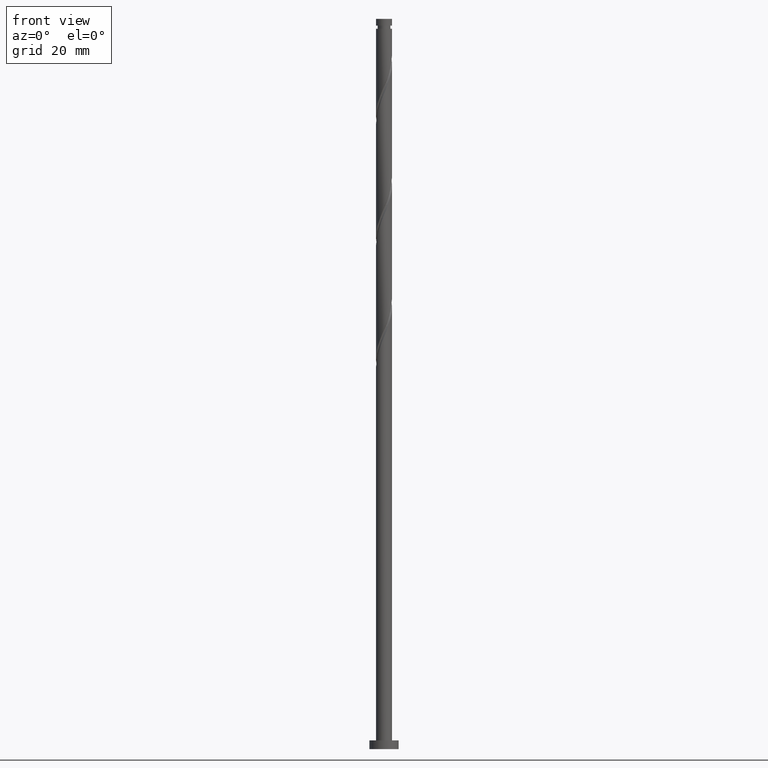
[diagram: clean part render]
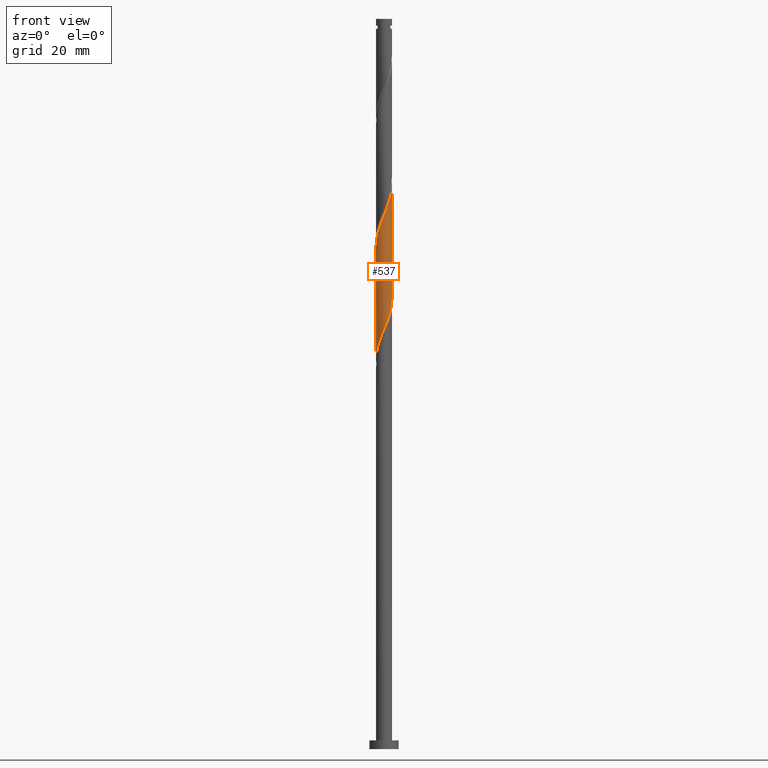
[diagram: same view with one face highlighted and labeled with its STEP entity id]
A machine part, front view. The second image highlights one B-rep face of the part: STEP entity #537.
In plain terms, the highlighted cylindrical surface (edge-blend (fillet) strip) has radius 2.75 mm, axis along (-0, -0, -1).
Its self-contained STEP definition (entity closure, byte-faithful):
#13 = CARTESIAN_POINT ( 'NONE',  ( -1.088498638932926976, -2.547384325978117925, 180.0894877273009627 ) ) ;
#31 = CARTESIAN_POINT ( 'NONE',  ( 2.749999999999999556, 2.811716444257881185E-15, 154.1738198596030429 ) ) ;
#47 = CARTESIAN_POINT ( 'NONE',  ( 2.750000000000000000, 3.367778697655221012E-16, 250.0000000000000000 ) ) ;
#116 =( BOUNDED_CURVE ( )  B_SPLINE_CURVE ( 2, ( #470, #1602, #1745, #1587, #873, #1430, #1565, #601, #1157, #187, #1706, #13, #594, #297, #1165, #853, #1309, #174, #746, #1149, #317, #146, #450, #1409, #734, #883, #326, #713, #864 ),
 .UNSPECIFIED., .F., .T. ) 
 B_SPLINE_CURVE_WITH_KNOTS ( ( 3, 2, 2, 2, 2, 2, 2, 2, 2, 2, 2, 2, 2, 2, 3 ),
 ( 0.3045271625973833829, 0.3076923076923077094, 0.3173076923076922906, 0.3269230769230768718, 0.3365384615384615641, 0.3461538461538461453, 0.3557692307692307265, 0.3653846153846154188, 0.3750000000000000000, 0.3846153846153845812, 0.3942307692307692735, 0.4038461538461538547, 0.4134615384615384359, 0.4230769230769231282, 0.4295271625973832719 ),
 .UNSPECIFIED. ) 
 CURVE ( )  GEOMETRIC_REPRESENTATION_ITEM ( )  RATIONAL_B_SPLINE_CURVE ( ( 0.9061636035682955059, 0.9069090390690841552, 0.9090909090909405910, 0.9024626128164440209, 0.9090909090909405910, 0.9024626128164440209, 0.9090909090909405910, 0.9024626128164440209, 0.9090909090909405910, 0.9024626128164440209, 0.9090909090909405910, 0.9024626128164440209, 0.9090909090909405910, 0.9024626128164440209, 0.9090909090909405910, 0.9024626128164440209, 0.9090909090909405910, 0.9024626128164440209, 0.9090909090909405910, 0.9024626128164440209, 0.9090909090909405910, 0.9024626128164440209, 0.9090909090909405910, 0.9024626128164440209, 0.9090909090909405910, 0.9024626128164440209, 0.9090909090909405910, 0.9046444828383006787, 0.9061636035682953949 ) ) 
 REPRESENTATION_ITEM ( '' )  );
#126 = CARTESIAN_POINT ( 'NONE',  ( 2.609387550283733592, -0.8680994254256009235, 152.0446159324291671 ) ) ;
#142 = DIRECTION ( 'NONE',  ( -0.000000000000000000, -0.000000000000000000, -1.000000000000000000 ) ) ;
#146 = CARTESIAN_POINT ( 'NONE',  ( 1.995858784247013684, -1.921078838710650327, 188.1023082401214594 ) ) ;
#174 = CARTESIAN_POINT ( 'NONE',  ( 0.8744753351926358720, -2.628552658657907770, 184.8971800349932266 ) ) ;
#187 = CARTESIAN_POINT ( 'NONE',  ( -1.666497818918486251, -2.212867192295496555, 178.4869236247368178 ) ) ;
#206 = LINE ( 'NONE', #753, #671 ) ;
#248 = CARTESIAN_POINT ( 'NONE',  ( 2.503981196414451382, -1.184936436776526270, 151.2433338811470946 ) ) ;
#275 = CARTESIAN_POINT ( 'NONE',  ( 0.7678692567585380102, -2.640620533989138874, 145.6343595221727583 ) ) ;
#297 = CARTESIAN_POINT ( 'NONE',  ( -0.4472398745841543177, -2.733856742000169149, 181.6920518298650222 ) ) ;
#317 = CARTESIAN_POINT ( 'NONE',  ( 1.736988640557375785, -2.131987444281664867, 187.3010261888393586 ) ) ;
#325 = EDGE_CURVE ( 'NONE', #1795, #1800, #116, .T. ) ;
#326 = CARTESIAN_POINT ( 'NONE',  ( 2.713923848296361019, -0.4439789923501908930, 192.1087184965316794 ) ) ;
#356 = ORIENTED_EDGE ( 'NONE', *, *, #845, .F. ) ;
#422 = CARTESIAN_POINT ( 'NONE',  ( -2.750000000000002220, -0.2234552059768610544, 133.8801872636180406 ) ) ;
#431 = CARTESIAN_POINT ( 'NONE',  ( 2.741313281104775346, -0.2184067188494102918, 153.6471800349931982 ) ) ;
#437 = DIRECTION ( 'NONE',  ( -1.000000000000000000, 0.000000000000000000, 0.000000000000000000 ) ) ;
#450 = CARTESIAN_POINT ( 'NONE',  ( 2.196732898992184158, -1.654347173505433144, 188.9035902914035034 ) ) ;
#470 = CARTESIAN_POINT ( 'NONE',  ( -2.750000000000003553, 5.010239408650972956E-15, 172.3513094411526367 ) ) ;
#537 = ADVANCED_FACE ( 'NONE', ( #1820 ), #1267, .T. ) ;
#565 = CARTESIAN_POINT ( 'NONE',  ( -2.196732898992181937, -1.654347173505428925, 137.6215390093522046 ) ) ;
#586 = CARTESIAN_POINT ( 'NONE',  ( -0.2200108456246517574, -2.761447341342095019, 143.2305133683265979 ) ) ;
#594 = CARTESIAN_POINT ( 'NONE',  ( -0.7678692567585404527, -2.640620533989142871, 180.8907697785830351 ) ) ;
#601 = CARTESIAN_POINT ( 'NONE',  ( -2.147646203141606591, -1.749746260841631651, 176.8843595221727298 ) ) ;
#671 = VECTOR ( 'NONE', #1024, 1000.000000000000000 ) ;
#684 = CARTESIAN_POINT ( 'NONE',  ( -1.995858784247010798, -1.921078838710645442, 138.4228210606342770 ) ) ;
#695 = CARTESIAN_POINT ( 'NONE',  ( 2.325813699778025434, -1.467341348809077850, 150.4420518298649938 ) ) ;
#704 = CARTESIAN_POINT ( 'NONE',  ( 2.750000000000003997, 2.273302657059545426E-15, 193.1846427744859511 ) ) ;
#713 = CARTESIAN_POINT ( 'NONE',  ( 2.750000000000003553, -0.2234552059768758203, 192.6449420371376675 ) ) ;
#727 = VECTOR ( 'NONE', #1466, 1000.000000000000000 ) ;
#734 = CARTESIAN_POINT ( 'NONE',  ( 2.528811026136768447, -1.080562258312370183, 190.5061543939675914 ) ) ;
#746 = CARTESIAN_POINT ( 'NONE',  ( 1.176296916030185935, -2.485724354255294255, 185.6984620862752990 ) ) ;
#753 = CARTESIAN_POINT ( 'NONE',  ( -2.750000000000000000, 0.000000000000000000, 250.0000000000000000 ) ) ;
#771 = VERTEX_POINT ( 'NONE', #31 ) ;
#805 = CARTESIAN_POINT ( 'NONE',  ( -2.749999999999999556, 3.798808387454795695E-15, 133.3404865262697001 ) ) ;
#811 = AXIS2_PLACEMENT_3D ( 'NONE', #1548, #142, #437 ) ;
#818 = CARTESIAN_POINT ( 'NONE',  ( 0.4472398745841510426, -2.733856742000163820, 144.8330774708906574 ) ) ;
#843 = CARTESIAN_POINT ( 'NONE',  ( 1.666497818918481588, -2.212867192295493446, 148.0382056760188334 ) ) ;
#845 = EDGE_CURVE ( 'NONE', #1800, #771, #1015, .T. ) ;
#853 = CARTESIAN_POINT ( 'NONE',  ( 0.2200108456246498978, -2.761447341342100348, 183.2946159324291386 ) ) ;
#854 = CARTESIAN_POINT ( 'NONE',  ( -1.478118496867735443, -2.342896049852674079, 140.0253851631983650 ) ) ;
#864 = CARTESIAN_POINT ( 'NONE',  ( 2.750000000000004441, 2.273302657059545426E-15, 193.1846427744859227 ) ) ;
#870 = EDGE_CURVE ( 'NONE', #1795, #1623, #206, .T. ) ;
#873 = CARTESIAN_POINT ( 'NONE',  ( -2.609387550283738033, -0.8680994254256000353, 174.4805133683265979 ) ) ;
#883 = CARTESIAN_POINT ( 'NONE',  ( 2.660015038536180043, -0.7735090083245254045, 191.3074364452496354 ) ) ;
#975 = CARTESIAN_POINT ( 'NONE',  ( 1.088498638932923424, -2.547384325978114372, 146.4356415734548023 ) ) ;
#992 = CARTESIAN_POINT ( 'NONE',  ( 2.749999999999999112, -0.1093761084261130057, 153.9096489439700122 ) ) ;
#1015 = LINE ( 'NONE', #47, #727 ) ;
#1024 = DIRECTION ( 'NONE',  ( -0.000000000000000000, -0.000000000000000000, -1.000000000000000000 ) ) ;
#1102 = CARTESIAN_POINT ( 'NONE',  ( 1.907072011030042091, -1.981306726568561771, 148.8394877273009342 ) ) ;
#1119 = CARTESIAN_POINT ( 'NONE',  ( -2.397607013737352855, -1.387615508300211964, 136.8202569580701891 ) ) ;
#1129 = CARTESIAN_POINT ( 'NONE',  ( -1.176296916030186157, -2.485724354255287594, 140.8266672144803806 ) ) ;
#1140 = CARTESIAN_POINT ( 'NONE',  ( -2.749999999999999556, 3.798808387454795695E-15, 133.3404865262697001 ) ) ;
#1149 = CARTESIAN_POINT ( 'NONE',  ( 1.478118496867736553, -2.342896049852680296, 186.4997441375573430 ) ) ;
#1157 = CARTESIAN_POINT ( 'NONE',  ( -1.907072011030046310, -1.981306726568564658, 177.6856415734548591 ) ) ;
#1165 = CARTESIAN_POINT ( 'NONE',  ( -0.1136145144797522794, -2.747652041671134082, 182.4933338811470946 ) ) ;
#1243 = CARTESIAN_POINT ( 'NONE',  ( 0.1136145144797496981, -2.747652041671130085, 144.0317954196086419 ) ) ;
#1255 = CARTESIAN_POINT ( 'NONE',  ( 1.377498228925702506, -2.380125759136805463, 147.2369236247368463 ) ) ;
#1267 = CYLINDRICAL_SURFACE ( 'NONE', #811, 2.750000000000000000 ) ;
#1274 = CARTESIAN_POINT ( 'NONE',  ( -2.713923848296357022, -0.4439789923501882840, 134.4164108042240287 ) ) ;
#1275 = ORIENTED_EDGE ( 'NONE', *, *, #325, .F. ) ;
#1309 = CARTESIAN_POINT ( 'NONE',  ( 0.5472430904086433845, -2.695000000000004725, 184.0958979837112395 ) ) ;
#1384 = CARTESIAN_POINT ( 'NONE',  ( 2.147646203141600818, -1.749746260841629875, 149.6407697785829782 ) ) ;
#1400 = CARTESIAN_POINT ( 'NONE',  ( -2.750000000000003553, 5.010239408650972167E-15, 172.3513094411526367 ) ) ;
#1409 = CARTESIAN_POINT ( 'NONE',  ( 2.397607013737355963, -1.387615508300216627, 189.7048723426855190 ) ) ;
#1430 = CARTESIAN_POINT ( 'NONE',  ( -2.503981196414456711, -1.184936436776527824, 175.2817954196086419 ) ) ;
#1466 = DIRECTION ( 'NONE',  ( -0.000000000000000000, -0.000000000000000000, -1.000000000000000000 ) ) ;
#1515 = CARTESIAN_POINT ( 'NONE',  ( 2.714793904153014026, -0.5512624140746728019, 152.8458979837111826 ) ) ;
#1523 =( BOUNDED_CURVE ( )  B_SPLINE_CURVE ( 2, ( #1543, #992, #431, #1515, #126, #248, #695, #1384, #1102, #843, #1255, #975, #275, #818, #1243, #586, #1534, #1823, #1129, #854, #1676, #684, #565, #1119, #1554, #1689, #1274, #422, #1140 ),
 .UNSPECIFIED., .F., .T. ) 
 B_SPLINE_CURVE_WITH_KNOTS ( ( 3, 2, 2, 2, 2, 2, 2, 2, 2, 2, 2, 2, 2, 2, 3 ),
 ( 0.8045271625973832164, 0.8076923076923077094, 0.8173076923076922906, 0.8269230769230768718, 0.8365384615384615641, 0.8461538461538461453, 0.8557692307692307265, 0.8653846153846154188, 0.8750000000000000000, 0.8846153846153845812, 0.8942307692307692735, 0.9038461538461538547, 0.9134615384615384359, 0.9230769230769231282, 0.9295271625973836604 ),
 .UNSPECIFIED. ) 
 CURVE ( )  GEOMETRIC_REPRESENTATION_ITEM ( )  RATIONAL_B_SPLINE_CURVE ( ( 0.9061636035682881785, 0.9069090390690768277, 0.9090909090909334855, 0.9024626128164369154, 0.9090909090909334855, 0.9024626128164369154, 0.9090909090909334855, 0.9024626128164369154, 0.9090909090909334855, 0.9024626128164369154, 0.9090909090909334855, 0.9024626128164369154, 0.9090909090909334855, 0.9024626128164369154, 0.9090909090909334855, 0.9024626128164369154, 0.9090909090909334855, 0.9024626128164369154, 0.9090909090909334855, 0.9024626128164369154, 0.9090909090909334855, 0.9024626128164369154, 0.9090909090909334855, 0.9024626128164369154, 0.9090909090909334855, 0.9024626128164369154, 0.9090909090909334855, 0.9046444828382932402, 0.9061636035682884005 ) ) 
 REPRESENTATION_ITEM ( '' )  );
#1534 = CARTESIAN_POINT ( 'NONE',  ( -0.5472430904086434955, -2.694999999999998508, 142.4292313170445254 ) ) ;
#1540 = ORIENTED_EDGE ( 'NONE', *, *, #1774, .F. ) ;
#1543 = CARTESIAN_POINT ( 'NONE',  ( 2.749999999999999556, 2.811716444257881185E-15, 154.1738198596030429 ) ) ;
#1547 = EDGE_LOOP ( 'NONE', ( #356, #1275, #1722, #1540 ) ) ;
#1548 = CARTESIAN_POINT ( 'NONE',  ( 0.000000000000000000, 0.000000000000000000, 250.0000000000000000 ) ) ;
#1554 = CARTESIAN_POINT ( 'NONE',  ( -2.528811026136764006, -1.080562258312367074, 136.0189749067881166 ) ) ;
#1565 = CARTESIAN_POINT ( 'NONE',  ( -2.325813699778032095, -1.467341348809079626, 176.0830774708906290 ) ) ;
#1587 = CARTESIAN_POINT ( 'NONE',  ( -2.714793904153019355, -0.5512624140746725798, 173.6792313170445823 ) ) ;
#1602 = CARTESIAN_POINT ( 'NONE',  ( -2.750000000000003997, -0.1093761084261164473, 172.6154803567855538 ) ) ;
#1623 = VERTEX_POINT ( 'NONE', #805 ) ;
#1676 = CARTESIAN_POINT ( 'NONE',  ( -1.736988640557373564, -2.131987444281659982, 139.2241031119163779 ) ) ;
#1689 = CARTESIAN_POINT ( 'NONE',  ( -2.660015038536175602, -0.7735090083245215187, 135.2176928555060442 ) ) ;
#1706 = CARTESIAN_POINT ( 'NONE',  ( -1.377498228925706947, -2.380125759136808128, 179.2882056760188618 ) ) ;
#1722 = ORIENTED_EDGE ( 'NONE', *, *, #870, .T. ) ;
#1745 = CARTESIAN_POINT ( 'NONE',  ( -2.741313281104781119, -0.2184067188494077938, 172.8779492657624530 ) ) ;
#1774 = EDGE_CURVE ( 'NONE', #771, #1623, #1523, .T. ) ;
#1795 = VERTEX_POINT ( 'NONE', #1400 ) ;
#1800 = VERTEX_POINT ( 'NONE', #704 ) ;
#1820 = FACE_OUTER_BOUND ( 'NONE', #1547, .T. ) ;
#1823 = CARTESIAN_POINT ( 'NONE',  ( -0.8744753351926364271, -2.628552658657902885, 141.6279492657624814 ) ) ;